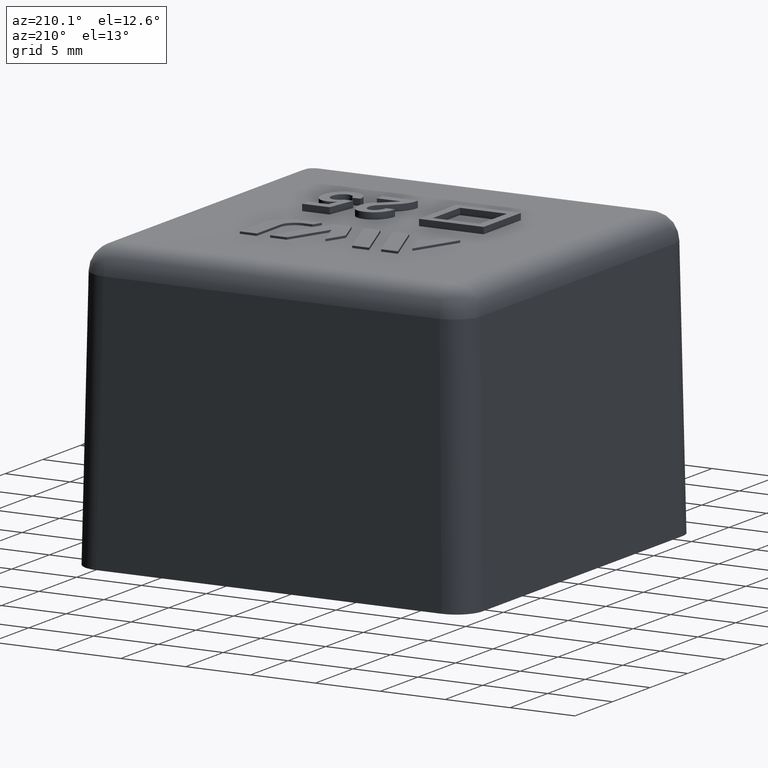
[diagram: clean part render]
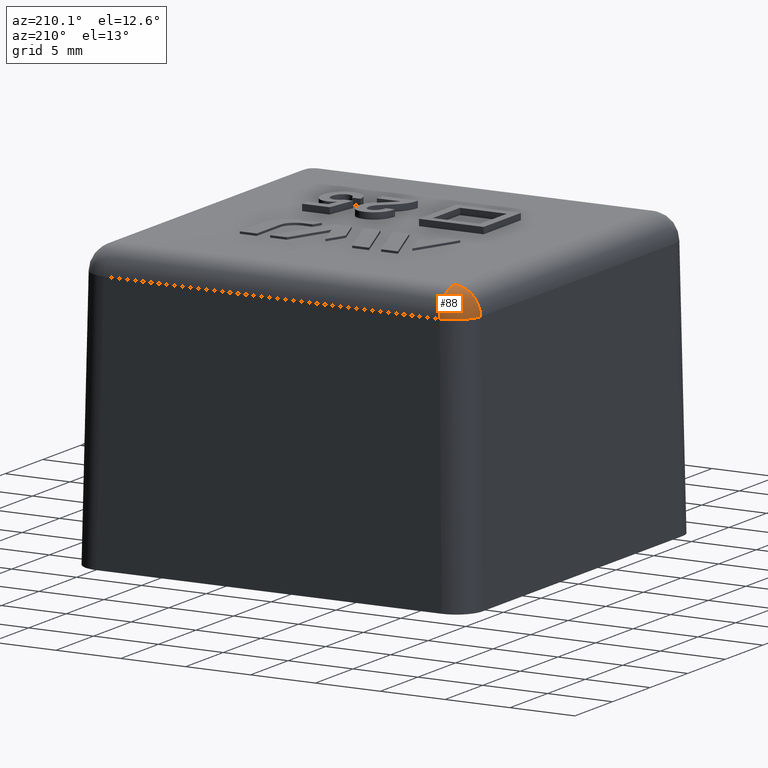
[diagram: same view with one face highlighted and labeled with its STEP entity id]
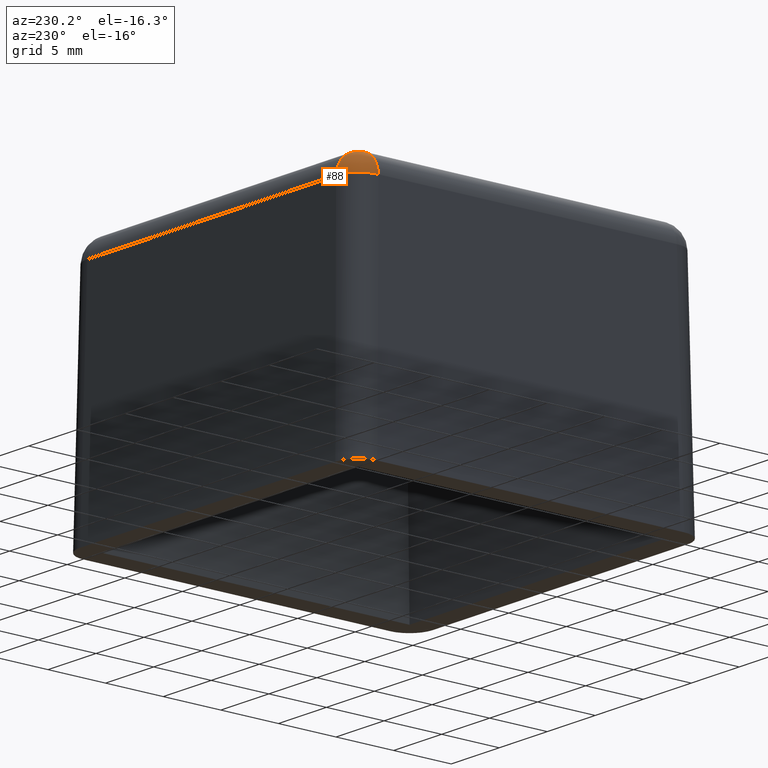
[diagram: same view with one face highlighted and labeled with its STEP entity id]
A machine part, auxiliary view. The second image highlights one B-rep face of the part: STEP entity #88.
A second angle (auxiliary view) of the same face is appended — the face is thin or edge-on in the first view.
In plain terms, the highlighted spherical surface has radius 2 mm.
Its self-contained STEP definition (entity closure, byte-faithful):
#88 = ADVANCED_FACE( '', ( #194 ), #195, .T. );
#194 = FACE_OUTER_BOUND( '', #375, .T. );
#195 = SPHERICAL_SURFACE( '', #376, 2.00000000000000 );
#375 = EDGE_LOOP( '', ( #685, #686, #687 ) );
#376 = AXIS2_PLACEMENT_3D( '', #688, #689, #690 );
#685 = ORIENTED_EDGE( '', *, *, #1301, .F. );
#686 = ORIENTED_EDGE( '', *, *, #1307, .T. );
#687 = ORIENTED_EDGE( '', *, *, #1308, .F. );
#688 = CARTESIAN_POINT( '', ( -12.9505940453478, 12.9505940453478, 20.0000000000000 ) );
#689 = DIRECTION( '', ( 0.000000000000000, 0.000000000000000, 1.00000000000000 ) );
#690 = DIRECTION( '', ( 1.00000000000000, 0.000000000000000, 0.000000000000000 ) );
#1301 = EDGE_CURVE( '', #1537, #1571, #1572, .T. );
#1307 = EDGE_CURVE( '', #1537, #1447, #1581, .T. );
#1308 = EDGE_CURVE( '', #1571, #1447, #1582, .T. );
#1447 = VERTEX_POINT( '', #1817 );
#1537 = VERTEX_POINT( '', #1984 );
#1571 = VERTEX_POINT( '', #2079 );
#1572 = CIRCLE( '', #2080, 2.00000000000000 );
#1581 = CIRCLE( '', #2093, 2.00000000000000 );
#1582 = CIRCLE( '', #2094, 2.00000000000000 );
#1817 = CARTESIAN_POINT( '', ( -12.9505940453478, 12.9505940453478, 22.0000000000000 ) );
#1984 = CARTESIAN_POINT( '', ( -14.9502894356606, 12.9505940453478, 20.0349048128746 ) );
#2079 = CARTESIAN_POINT( '', ( -12.9505940453478, 14.9502894356606, 20.0349048128746 ) );
#2080 = AXIS2_PLACEMENT_3D( '', #2464, #2465, #2466 );
#2093 = AXIS2_PLACEMENT_3D( '', #2474, #2475, #2476 );
#2094 = AXIS2_PLACEMENT_3D( '', #2477, #2478, #2479 );
#2464 = CARTESIAN_POINT( '', ( -12.9505940453478, 12.9505940453478, 20.0000000000000 ) );
#2465 = DIRECTION( '', ( -0.0174497491606827, 0.0174497491606827, -0.999695459881888 ) );
#2466 = DIRECTION( '', ( -0.999847695156391, 0.000000000000000, 0.0174524064372835 ) );
#2474 = CARTESIAN_POINT( '', ( -12.9505940453478, 12.9505940453478, 20.0000000000000 ) );
#2475 = DIRECTION( '', ( 0.000000000000000, 1.00000000000000, 0.000000000000000 ) );
#2476 = DIRECTION( '', ( 0.000000000000000, 0.000000000000000, 1.00000000000000 ) );
#2477 = CARTESIAN_POINT( '', ( -12.9505940453478, 12.9505940453478, 20.0000000000000 ) );
#2478 = DIRECTION( '', ( 1.00000000000000, 0.000000000000000, 0.000000000000000 ) );
#2479 = DIRECTION( '', ( 0.000000000000000, 0.000000000000000, -1.00000000000000 ) );